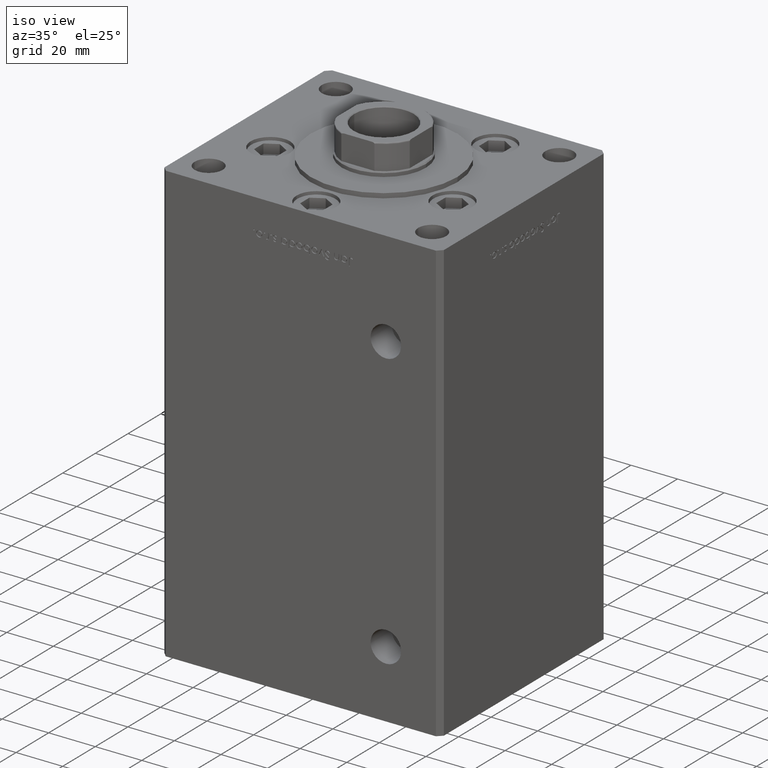
[diagram: clean part render]
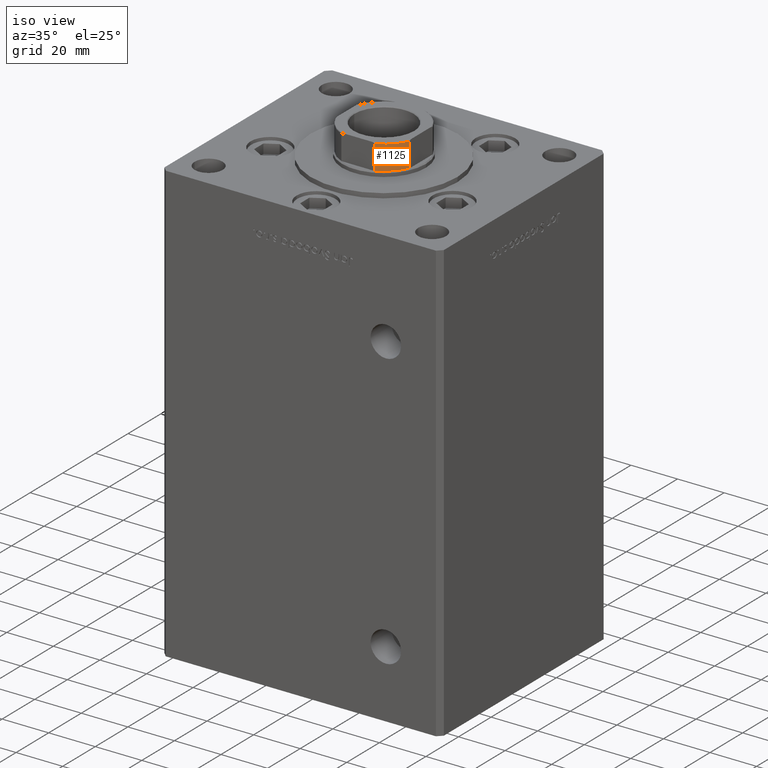
[diagram: same view with one face highlighted and labeled with its STEP entity id]
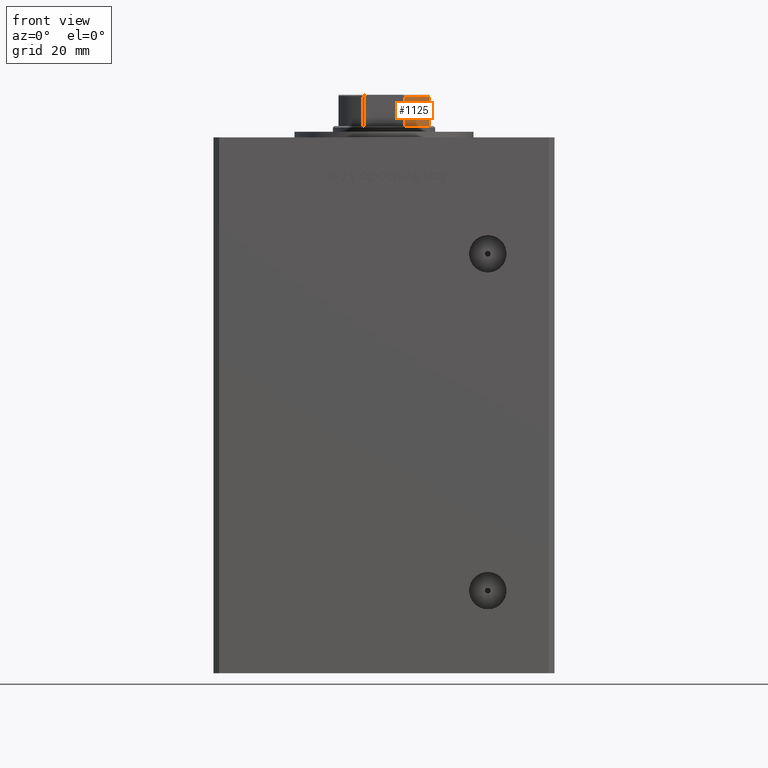
[diagram: same view with one face highlighted and labeled with its STEP entity id]
A machine part, iso view. The second image highlights one B-rep face of the part: STEP entity #1125.
A second angle (front view) of the same face is appended — the face is thin or edge-on in the first view.
In plain terms, the highlighted cylindrical surface (partial cylindrical patch) has radius 17.5 mm, axis along (0, 0, 1).
Its self-contained STEP definition (entity closure, byte-faithful):
#1081 = DIRECTION ( 'NONE',  ( 1.000000000000000000, 0.000000000000000000, 0.000000000000000000 ) ) ;
#1125 = ADVANCED_FACE ( 'NONE', ( #48501 ), #20569, .T. ) ;
#2282 = ORIENTED_EDGE ( 'NONE', *, *, #8849, .F. ) ;
#3008 = CARTESIAN_POINT ( 'NONE',  ( 15.99999999999999645, -7.088723439378925129, 158.2500000000000284 ) ) ;
#3691 = CARTESIAN_POINT ( 'NONE',  ( 15.99999999999999645, -7.088723439378925129, 168.7500000000000000 ) ) ;
#5353 = CARTESIAN_POINT ( 'NONE',  ( 7.088723439378916247, -16.00000000000000000, 158.2500000000000284 ) ) ;
#6920 = DIRECTION ( 'NONE',  ( 0.000000000000000000, -0.000000000000000000, -1.000000000000000000 ) ) ;
#8849 = EDGE_CURVE ( 'NONE', #16844, #13187, #17082, .T. ) ;
#10362 = DIRECTION ( 'NONE',  ( 1.000000000000000000, 0.000000000000000000, 0.000000000000000000 ) ) ;
#13187 = VERTEX_POINT ( 'NONE', #34613 ) ;
#13589 = ORIENTED_EDGE ( 'NONE', *, *, #26024, .T. ) ;
#14354 = AXIS2_PLACEMENT_3D ( 'NONE', #29311, #25365, #25885 ) ;
#15167 = CIRCLE ( 'NONE', #14354, 17.50000000000001421 ) ;
#16297 = ORIENTED_EDGE ( 'NONE', *, *, #18483, .T. ) ;
#16591 = VECTOR ( 'NONE', #28956, 1000.000000000000000 ) ;
#16844 = VERTEX_POINT ( 'NONE', #5353 ) ;
#17082 = LINE ( 'NONE', #24222, #16591 ) ;
#17981 = EDGE_LOOP ( 'NONE', ( #13589, #19622, #2282, #16297 ) ) ;
#18483 = EDGE_CURVE ( 'NONE', #16844, #43663, #15167, .T. ) ;
#18519 = CARTESIAN_POINT ( 'NONE',  ( 0.000000000000000000, 0.000000000000000000, 168.7500000000000000 ) ) ;
#19622 = ORIENTED_EDGE ( 'NONE', *, *, #27092, .T. ) ;
#20569 = CYLINDRICAL_SURFACE ( 'NONE', #43279, 17.50000000000000000 ) ;
#22033 = CIRCLE ( 'NONE', #33816, 17.50000000000000000 ) ;
#24222 = CARTESIAN_POINT ( 'NONE',  ( 7.088723439378916247, -16.00000000000000000, -0.001000000000001000089 ) ) ;
#25365 = DIRECTION ( 'NONE',  ( 0.000000000000000000, 0.000000000000000000, 1.000000000000000000 ) ) ;
#25885 = DIRECTION ( 'NONE',  ( 1.000000000000000000, 0.000000000000000000, 0.000000000000000000 ) ) ;
#26024 = EDGE_CURVE ( 'NONE', #43663, #50615, #37155, .T. ) ;
#27092 = EDGE_CURVE ( 'NONE', #50615, #13187, #22033, .T. ) ;
#28956 = DIRECTION ( 'NONE',  ( -0.000000000000000000, -0.000000000000000000, 1.000000000000000000 ) ) ;
#29311 = CARTESIAN_POINT ( 'NONE',  ( 0.000000000000000000, 0.000000000000000000, 158.2500000000000000 ) ) ;
#29767 = CARTESIAN_POINT ( 'NONE',  ( 15.99999999999999645, -7.088723439378925129, -0.001000000000001000089 ) ) ;
#33816 = AXIS2_PLACEMENT_3D ( 'NONE', #18519, #6920, #10362 ) ;
#34613 = CARTESIAN_POINT ( 'NONE',  ( 7.088723439378916247, -16.00000000000000000, 168.7500000000000000 ) ) ;
#36637 = DIRECTION ( 'NONE',  ( -0.000000000000000000, -0.000000000000000000, 1.000000000000000000 ) ) ;
#36648 = CARTESIAN_POINT ( 'NONE',  ( 0.000000000000000000, 0.000000000000000000, -0.001000000000001000089 ) ) ;
#37155 = LINE ( 'NONE', #29767, #47228 ) ;
#37164 = DIRECTION ( 'NONE',  ( -0.000000000000000000, -0.000000000000000000, 1.000000000000000000 ) ) ;
#43279 = AXIS2_PLACEMENT_3D ( 'NONE', #36648, #37164, #1081 ) ;
#43663 = VERTEX_POINT ( 'NONE', #3008 ) ;
#47228 = VECTOR ( 'NONE', #36637, 1000.000000000000000 ) ;
#48501 = FACE_OUTER_BOUND ( 'NONE', #17981, .T. ) ;
#50615 = VERTEX_POINT ( 'NONE', #3691 ) ;